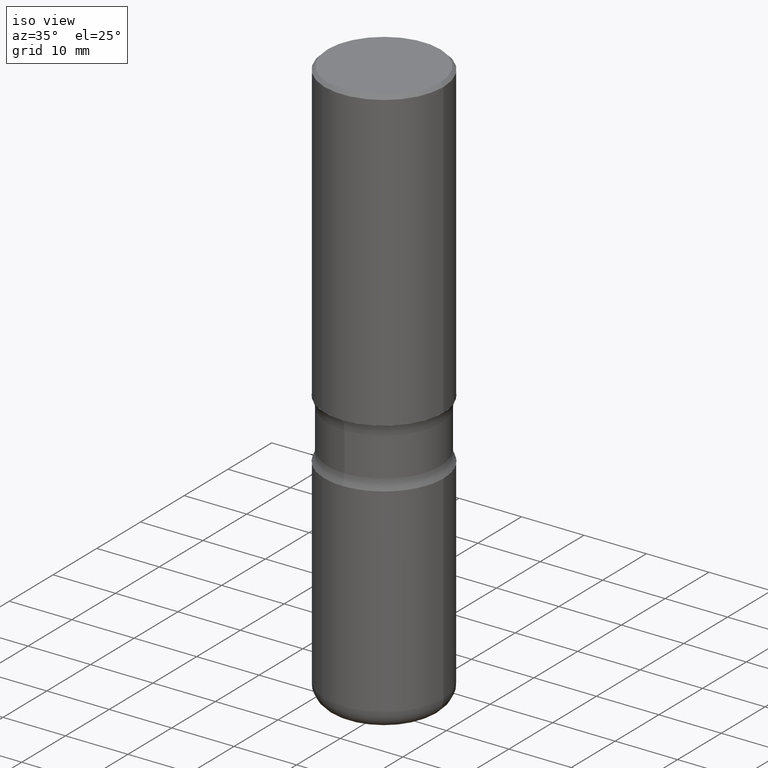
[diagram: clean part render]
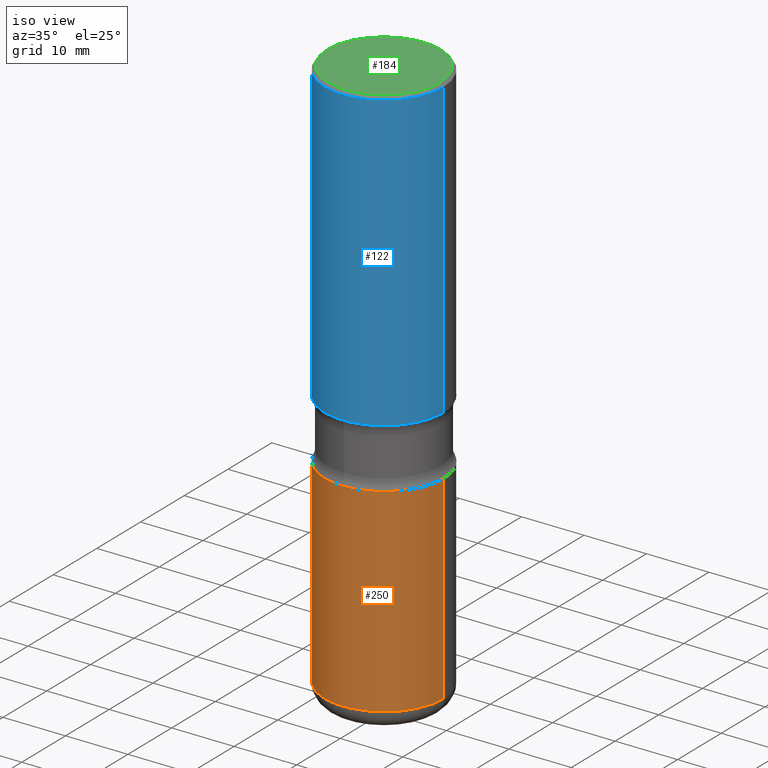
[diagram: same view with three faces highlighted in distinct colors, each labeled with its STEP entity id]
A machine part, iso view with three faces highlighted in distinct colors.
Their STEP definitions:

[orange] entity #250 — the highlighted cylindrical surface (partial cylindrical patch) has radius 9.525 mm, axis along (-0, 0, 1).
#4 = CARTESIAN_POINT ( 'NONE',  ( 0.3750000000000003886, -2.618611004132352383E-15, 1.828566290923477884E-29 ) ) ;
#15 = DIRECTION ( 'NONE',  ( -2.445468806185136877E-29, 3.491481338843145188E-15, 1.000000000000000000 ) ) ;
#24 = VERTEX_POINT ( 'NONE', #412 ) ;
#28 = CIRCLE ( 'NONE', #510, 0.3750000000000002776 ) ;
#43 = CARTESIAN_POINT ( 'NONE',  ( 0.3750000000000003886, -1.047444401652943320E-14, -2.250000000000000888 ) ) ;
#57 = ORIENTED_EDGE ( 'NONE', *, *, #252, .T. ) ;
#64 = ORIENTED_EDGE ( 'NONE', *, *, #533, .F. ) ;
#68 = CARTESIAN_POINT ( 'NONE',  ( -0.3750000000000003886, 2.664535259100378458E-15, -1.844600658845591560E-29 ) ) ;
#90 = DIRECTION ( 'NONE',  ( -2.445468806185136597E-29, 3.491481338843145583E-15, 1.000000000000000000 ) ) ;
#100 = CARTESIAN_POINT ( 'NONE',  ( 0.000000000000000000, 0.000000000000000000, 0.000000000000000000 ) ) ;
#150 = VECTOR ( 'NONE', #15, 39.37007874015748143 ) ;
#159 = VECTOR ( 'NONE', #235, 39.37007874015748143 ) ;
#165 = EDGE_CURVE ( 'NONE', #261, #24, #28, .T. ) ;
#169 = DIRECTION ( 'NONE',  ( 1.000000000000000000, -6.982962677686265922E-15, 0.000000000000000000 ) ) ;
#181 = CARTESIAN_POINT ( 'NONE',  ( -0.3750000000000002220, -9.573106833544843947E-15, -3.504999999999999893 ) ) ;
#185 = DIRECTION ( 'NONE',  ( 1.000000000000000000, -6.982962677686265922E-15, 4.876176775795935793E-29 ) ) ;
#192 = ORIENTED_EDGE ( 'NONE', *, *, #165, .T. ) ;
#202 = VERTEX_POINT ( 'NONE', #475 ) ;
#212 = VERTEX_POINT ( 'NONE', #43 ) ;
#235 = DIRECTION ( 'NONE',  ( -2.445468806185136877E-29, 3.491481338843145188E-15, 1.000000000000000000 ) ) ;
#250 = ADVANCED_FACE ( 'NONE', ( #306 ), #396, .T. ) ;
#251 = CARTESIAN_POINT ( 'NONE',  ( 5.502304813916559585E-29, -7.855833012397080026E-15, -2.250000000000000888 ) ) ;
#252 = EDGE_CURVE ( 'NONE', #24, #212, #267, .T. ) ;
#254 = AXIS2_PLACEMENT_3D ( 'NONE', #251, #416, #169 ) ;
#261 = VERTEX_POINT ( 'NONE', #181 ) ;
#267 = LINE ( 'NONE', #4, #159 ) ;
#269 = DIRECTION ( 'NONE',  ( -2.445468806185136597E-29, 3.491481338843145583E-15, 1.000000000000000000 ) ) ;
#273 = DIRECTION ( 'NONE',  ( 1.000000000000000000, -6.982962677686267499E-15, 0.000000000000000000 ) ) ;
#274 = EDGE_LOOP ( 'NONE', ( #542, #192, #57, #64 ) ) ;
#306 = FACE_OUTER_BOUND ( 'NONE', #274, .T. ) ;
#360 = EDGE_CURVE ( 'NONE', #261, #202, #445, .T. ) ;
#381 = AXIS2_PLACEMENT_3D ( 'NONE', #100, #90, #185 ) ;
#382 = CIRCLE ( 'NONE', #254, 0.3750000000000003886 ) ;
#396 = CYLINDRICAL_SURFACE ( 'NONE', #381, 0.3750000000000003886 ) ;
#412 = CARTESIAN_POINT ( 'NONE',  ( 0.3750000000000002220, -1.485625309677757439E-14, -3.504999999999999893 ) ) ;
#416 = DIRECTION ( 'NONE',  ( -2.445468806185136597E-29, 3.491481338843145583E-15, 1.000000000000000000 ) ) ;
#445 = LINE ( 'NONE', #68, #150 ) ;
#475 = CARTESIAN_POINT ( 'NONE',  ( -0.3750000000000003886, -7.382202293420774138E-15, -2.250000000000000888 ) ) ;
#510 = AXIS2_PLACEMENT_3D ( 'NONE', #531, #269, #273 ) ;
#531 = CARTESIAN_POINT ( 'NONE',  ( 8.571368165678902740E-29, -1.223764209264522438E-14, -3.504999999999999893 ) ) ;
#533 = EDGE_CURVE ( 'NONE', #202, #212, #382, .T. ) ;
#542 = ORIENTED_EDGE ( 'NONE', *, *, #360, .F. ) ;

[blue] entity #122 — the highlighted cylindrical surface (partial cylindrical patch) has radius 9.525 mm, axis along (-0, 0, 1).
#1 = CYLINDRICAL_SURFACE ( 'NONE', #20, 0.3750000000000003886 ) ;
#10 = DIRECTION ( 'NONE',  ( 1.000000000000000000, -6.982962677686266711E-15, 0.000000000000000000 ) ) ;
#13 = CARTESIAN_POINT ( 'NONE',  ( 4.585254011597132801E-29, -6.546527510330900285E-15, -1.875000000000000666 ) ) ;
#20 = AXIS2_PLACEMENT_3D ( 'NONE', #31, #160, #333 ) ;
#31 = CARTESIAN_POINT ( 'NONE',  ( 0.000000000000000000, 0.000000000000000000, 0.000000000000000000 ) ) ;
#32 = DIRECTION ( 'NONE',  ( -2.445468806185136877E-29, 3.491481338843145188E-15, 1.000000000000000000 ) ) ;
#37 = ORIENTED_EDGE ( 'NONE', *, *, #513, .F. ) ;
#52 = DIRECTION ( 'NONE',  ( 1.000000000000000000, -6.982962677686265133E-15, 0.000000000000000000 ) ) ;
#67 = VECTOR ( 'NONE', #423, 39.37007874015748143 ) ;
#75 = CIRCLE ( 'NONE', #91, 0.3750000000000004441 ) ;
#77 = LINE ( 'NONE', #501, #176 ) ;
#86 = ORIENTED_EDGE ( 'NONE', *, *, #262, .F. ) ;
#91 = AXIS2_PLACEMENT_3D ( 'NONE', #13, #437, #52 ) ;
#102 = EDGE_LOOP ( 'NONE', ( #37, #186, #499, #86 ) ) ;
#122 = ADVANCED_FACE ( 'NONE', ( #129 ), #1, .T. ) ;
#129 = FACE_OUTER_BOUND ( 'NONE', #102, .T. ) ;
#160 = DIRECTION ( 'NONE',  ( -2.445468806185136597E-29, 3.491481338843145583E-15, 1.000000000000000000 ) ) ;
#164 = VERTEX_POINT ( 'NONE', #477 ) ;
#176 = VECTOR ( 'NONE', #32, 39.37007874015748143 ) ;
#186 = ORIENTED_EDGE ( 'NONE', *, *, #214, .T. ) ;
#214 = EDGE_CURVE ( 'NONE', #164, #227, #75, .T. ) ;
#227 = VERTEX_POINT ( 'NONE', #364 ) ;
#253 = CARTESIAN_POINT ( 'NONE',  ( 0.3750000000000003886, -2.618611004132352383E-15, 1.828566290923477884E-29 ) ) ;
#262 = EDGE_CURVE ( 'NONE', #492, #471, #424, .T. ) ;
#292 = CARTESIAN_POINT ( 'NONE',  ( -0.3750000000000002220, 2.548781377355488296E-15, -0.02000000000000013572 ) ) ;
#302 = CARTESIAN_POINT ( 'NONE',  ( 0.3750000000000002220, -2.642516375941189606E-15, -0.02000000000000013572 ) ) ;
#312 = AXIS2_PLACEMENT_3D ( 'NONE', #516, #352, #10 ) ;
#333 = DIRECTION ( 'NONE',  ( 1.000000000000000000, -6.982962677686265922E-15, 4.876176775795935793E-29 ) ) ;
#352 = DIRECTION ( 'NONE',  ( -2.445468806185136597E-29, 3.491481338843145583E-15, 1.000000000000000000 ) ) ;
#364 = CARTESIAN_POINT ( 'NONE',  ( 0.3750000000000004441, -9.165138514463253457E-15, -1.875000000000000666 ) ) ;
#423 = DIRECTION ( 'NONE',  ( -2.445468806185136877E-29, 3.491481338843145188E-15, 1.000000000000000000 ) ) ;
#424 = CIRCLE ( 'NONE', #312, 0.3750000000000002220 ) ;
#437 = DIRECTION ( 'NONE',  ( -2.445468806185136597E-29, 3.491481338843145583E-15, 1.000000000000000000 ) ) ;
#468 = EDGE_CURVE ( 'NONE', #227, #471, #556, .T. ) ;
#471 = VERTEX_POINT ( 'NONE', #302 ) ;
#477 = CARTESIAN_POINT ( 'NONE',  ( -0.3750000000000004441, -6.436433094535026432E-16, -1.875000000000000666 ) ) ;
#492 = VERTEX_POINT ( 'NONE', #292 ) ;
#499 = ORIENTED_EDGE ( 'NONE', *, *, #468, .T. ) ;
#501 = CARTESIAN_POINT ( 'NONE',  ( -0.3750000000000003886, 2.664535259100378458E-15, -1.844600658845591560E-29 ) ) ;
#513 = EDGE_CURVE ( 'NONE', #164, #492, #77, .T. ) ;
#516 = CARTESIAN_POINT ( 'NONE',  ( 4.890937612370306439E-31, -6.982962677686338448E-17, -0.02000000000000013572 ) ) ;
#556 = LINE ( 'NONE', #253, #67 ) ;

[green] entity #184 — the highlighted planar face has unit normal (0, -0, -1).
#7 = CARTESIAN_POINT ( 'NONE',  ( 2.478951750578625787E-15, 0.3550000000000001488, -1.237341619044267019E-15 ) ) ;
#18 = DIRECTION ( 'NONE',  ( -2.445468806185136597E-29, 3.491481338843145583E-15, 1.000000000000000000 ) ) ;
#35 = DIRECTION ( 'NONE',  ( 1.000000000000000000, -6.982962677686266711E-15, 4.876231632511985941E-29 ) ) ;
#44 = AXIS2_PLACEMENT_3D ( 'NONE', #7, #94, #142 ) ;
#94 = DIRECTION ( 'NONE',  ( 2.438088387897960049E-29, -3.491481338843145188E-15, -1.000000000000000000 ) ) ;
#105 = CARTESIAN_POINT ( 'NONE',  ( -1.043851414335219820E-46, 1.490343170380447200E-32, 4.268512490100411279E-18 ) ) ;
#142 = DIRECTION ( 'NONE',  ( -1.000000000000000000, 6.982962677686265922E-15, -4.876176775795935793E-29 ) ) ;
#154 = ORIENTED_EDGE ( 'NONE', *, *, #490, .T. ) ;
#170 = CARTESIAN_POINT ( 'NONE',  ( -1.043851414335219820E-46, 1.490343170380447200E-32, 4.268512490100411279E-18 ) ) ;
#184 = ADVANCED_FACE ( 'NONE', ( #232 ), #484, .F. ) ;
#190 = CIRCLE ( 'NONE', #442, 0.3550000000000001488 ) ;
#209 = AXIS2_PLACEMENT_3D ( 'NONE', #170, #295, #35 ) ;
#232 = FACE_OUTER_BOUND ( 'NONE', #278, .T. ) ;
#266 = CIRCLE ( 'NONE', #209, 0.3550000000000001488 ) ;
#271 = VERTEX_POINT ( 'NONE', #518 ) ;
#278 = EDGE_LOOP ( 'NONE', ( #438, #154 ) ) ;
#295 = DIRECTION ( 'NONE',  ( -2.445468806185136597E-29, 3.491481338843145583E-15, 1.000000000000000000 ) ) ;
#406 = VERTEX_POINT ( 'NONE', #496 ) ;
#418 = EDGE_CURVE ( 'NONE', #271, #406, #190, .T. ) ;
#438 = ORIENTED_EDGE ( 'NONE', *, *, #418, .T. ) ;
#442 = AXIS2_PLACEMENT_3D ( 'NONE', #105, #18, #538 ) ;
#484 = PLANE ( 'NONE',  #44 ) ;
#490 = EDGE_CURVE ( 'NONE', #406, #271, #266, .T. ) ;
#496 = CARTESIAN_POINT ( 'NONE',  ( 0.3550000000000001488, -2.538996582575041837E-15, 4.268512490117958041E-18 ) ) ;
#518 = CARTESIAN_POINT ( 'NONE',  ( -0.3550000000000001488, 2.513866563967057041E-15, 4.268512490082953109E-18 ) ) ;
#538 = DIRECTION ( 'NONE',  ( 1.000000000000000000, -6.982962677686266711E-15, 4.876231632511985941E-29 ) ) ;